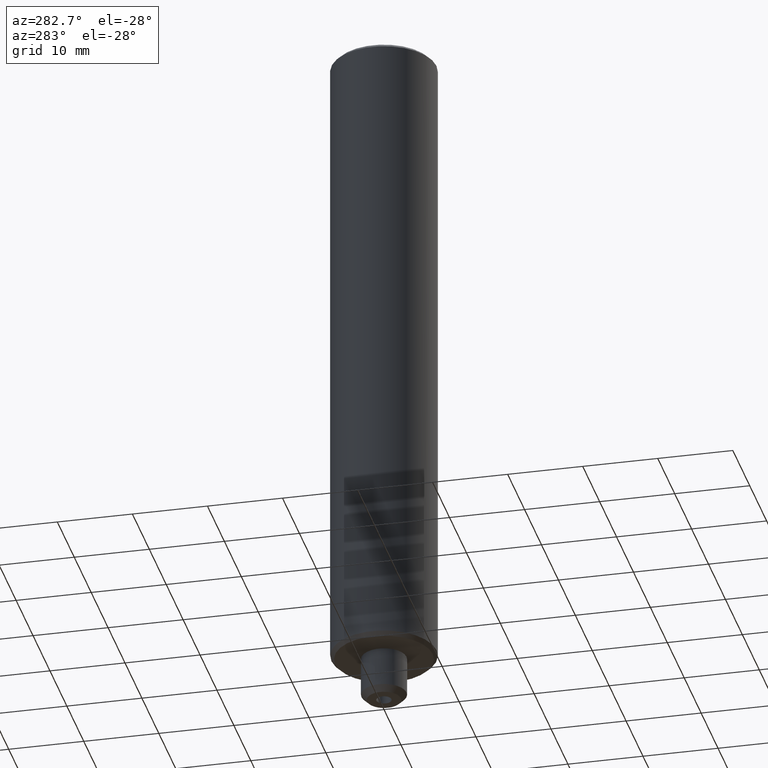
[diagram: clean part render]
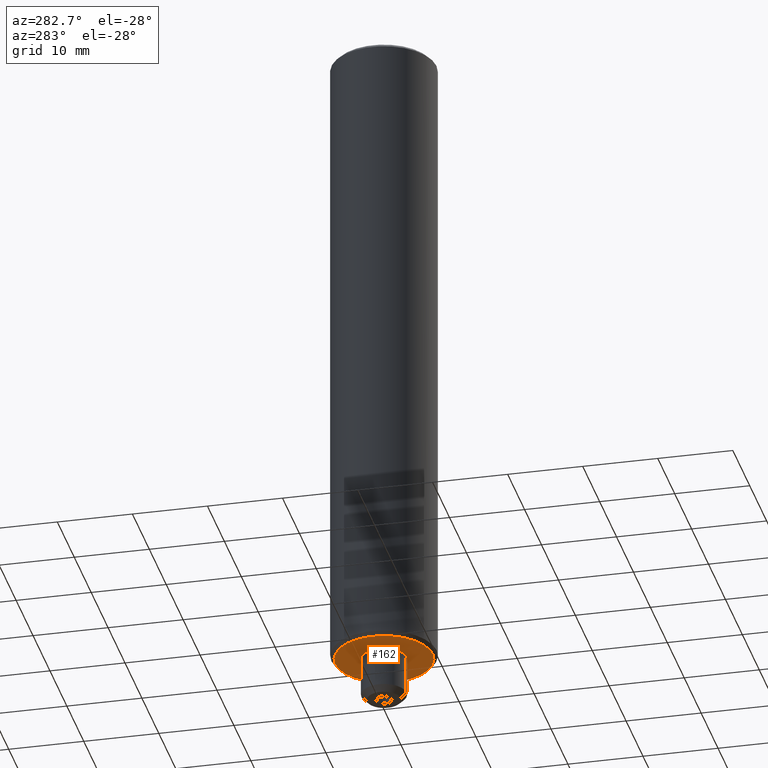
[diagram: same view with one face highlighted and labeled with its STEP entity id]
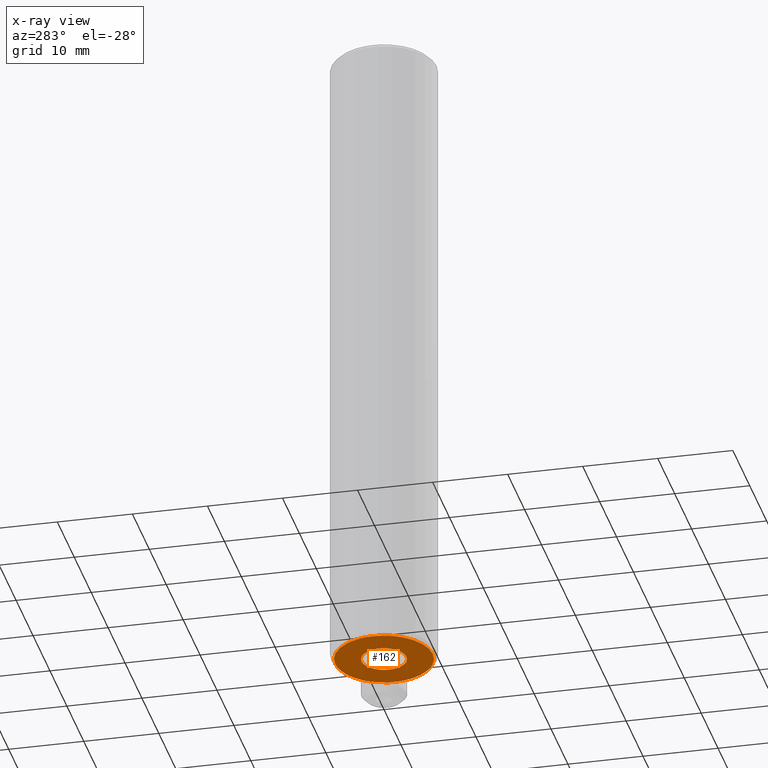
[diagram: x-ray of the same camera — body ghosted, the highlighted face saturated]
A machine part, auxiliary view. The second image highlights one B-rep face of the part: STEP entity #162.
The next image is the same camera in x-ray: the body ghosted, the highlighted face saturated — about 0% of this face is hidden behind the body in this view.
In plain terms, the highlighted planar face has unit normal (-0, 0, 1).
Its self-contained STEP definition (entity closure, byte-faithful):
#104=EDGE_CURVE('NONE',#134,#198,#280,.T.);
#110=EDGE_CURVE('NONE',#152,#170,#286,.T.);
#134=VERTEX_POINT('NONE',#315);
#152=VERTEX_POINT('NONE',#337);
#162=ADVANCED_FACE('NONE',(#347,#348),#349,.F.);
#170=VERTEX_POINT('NONE',#357);
#178=EDGE_CURVE('NONE',#198,#134,#368,.T.);
#198=VERTEX_POINT('NONE',#390);
#246=EDGE_CURVE('NONE',#170,#152,#443,.T.);
#280=CIRCLE('',#469,3.0);
#286=CIRCLE('',#477,6.5);
#315=CARTESIAN_POINT('',(0.0,3.0,0.0));
#337=CARTESIAN_POINT('',(0.0,6.5,0.0));
#347=FACE_OUTER_BOUND('',#553,.T.);
#348=FACE_BOUND('',#554,.T.);
#349=PLANE('',#555);
#357=CARTESIAN_POINT('',(-8.26609288830105E-016,-6.5,0.0));
#368=CIRCLE('',#579,3.0);
#390=CARTESIAN_POINT('',(-3.67381906146713E-016,-3.0,0.0));
#443=CIRCLE('',#679,6.5);
#469=AXIS2_PLACEMENT_3D('',#703,#704,#705);
#477=AXIS2_PLACEMENT_3D('',#709,#710,#711);
#553=EDGE_LOOP('',(#797,#798));
#554=EDGE_LOOP('',(#799,#800));
#555=AXIS2_PLACEMENT_3D('',#801,#802,#803);
#579=AXIS2_PLACEMENT_3D('',#822,#823,#824);
#679=AXIS2_PLACEMENT_3D('',#922,#923,#924);
#703=CARTESIAN_POINT('',(0.0,0.0,0.0));
#704=DIRECTION('',(0.0,-0.0,1.0));
#705=DIRECTION('',(0.0,1.0,0.0));
#709=CARTESIAN_POINT('',(0.0,0.0,0.0));
#710=DIRECTION('',(0.0,0.0,-1.0));
#711=DIRECTION('',(0.0,1.0,0.0));
#797=ORIENTED_EDGE('',*,*,#110,.T.);
#798=ORIENTED_EDGE('',*,*,#246,.T.);
#799=ORIENTED_EDGE('',*,*,#104,.T.);
#800=ORIENTED_EDGE('',*,*,#178,.T.);
#801=CARTESIAN_POINT('',(-3.0,0.0,0.0));
#802=DIRECTION('',(-0.0,0.0,1.0));
#803=DIRECTION('',(0.0,1.0,0.0));
#822=CARTESIAN_POINT('',(0.0,0.0,0.0));
#823=DIRECTION('',(0.0,-0.0,1.0));
#824=DIRECTION('',(0.0,1.0,0.0));
#922=CARTESIAN_POINT('',(0.0,0.0,0.0));
#923=DIRECTION('',(0.0,0.0,-1.0));
#924=DIRECTION('',(0.0,1.0,0.0));